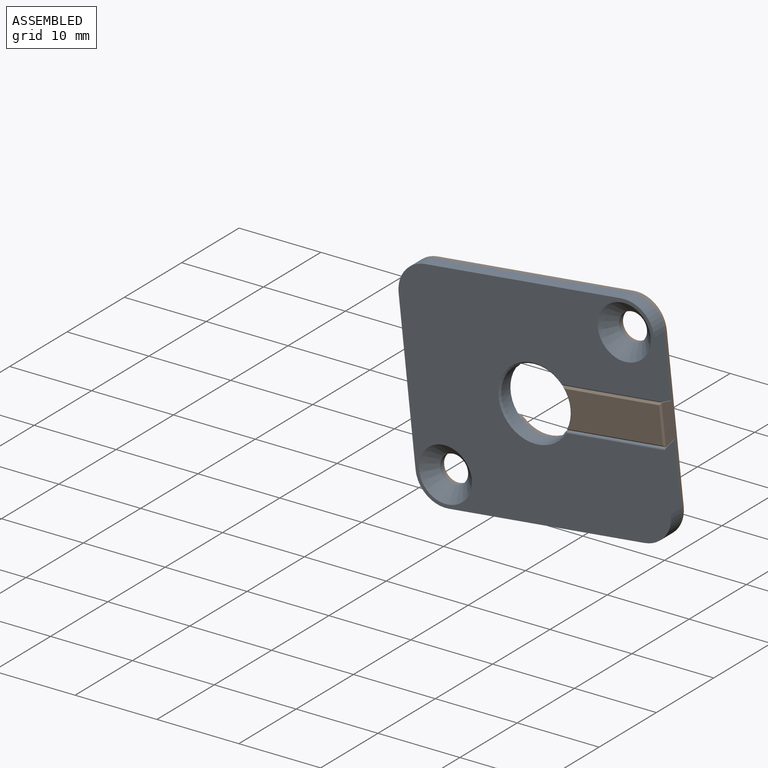
[diagram: assembled view]
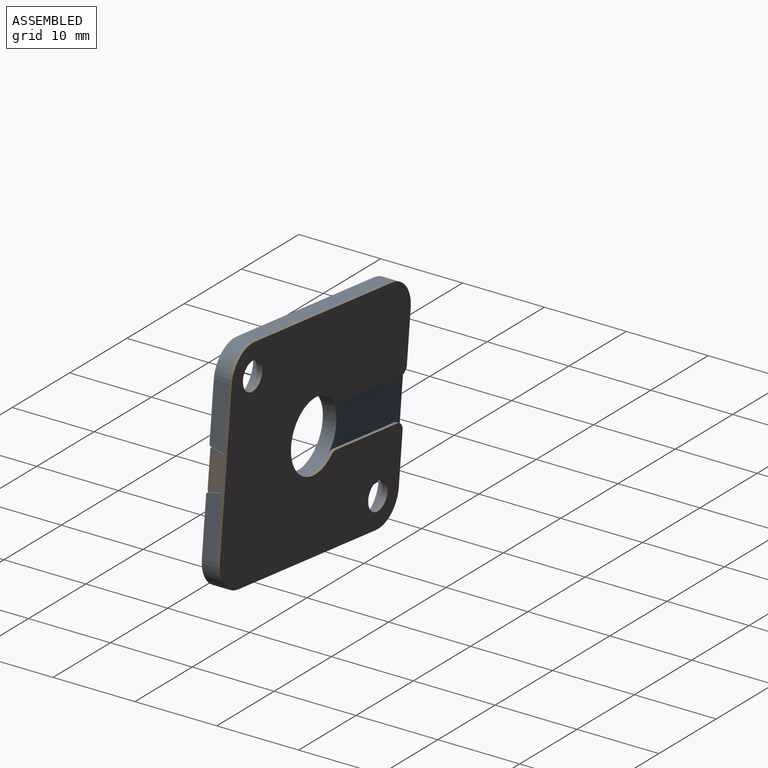
[diagram: assembled view, second angle]
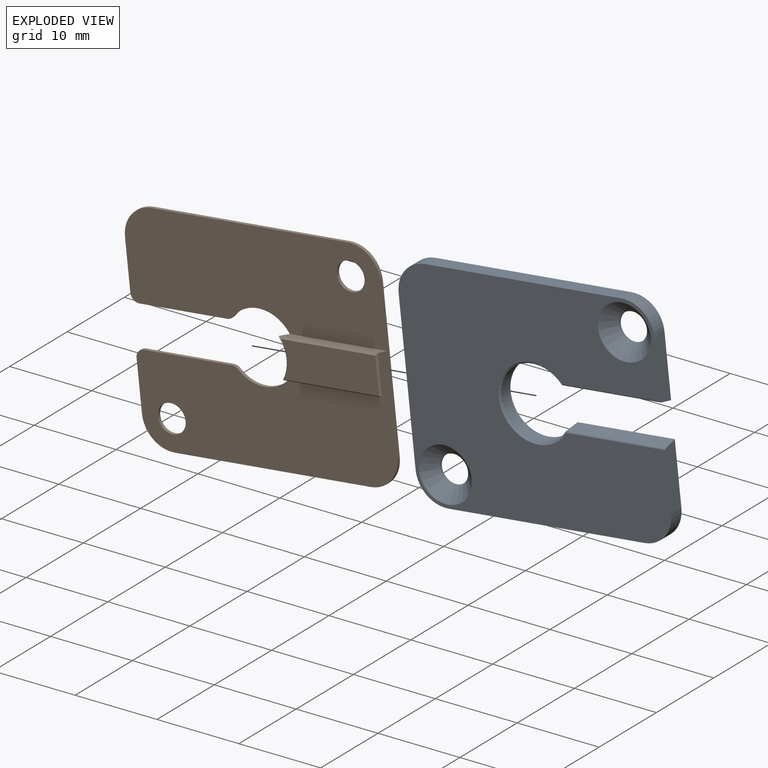
[diagram: exploded view]
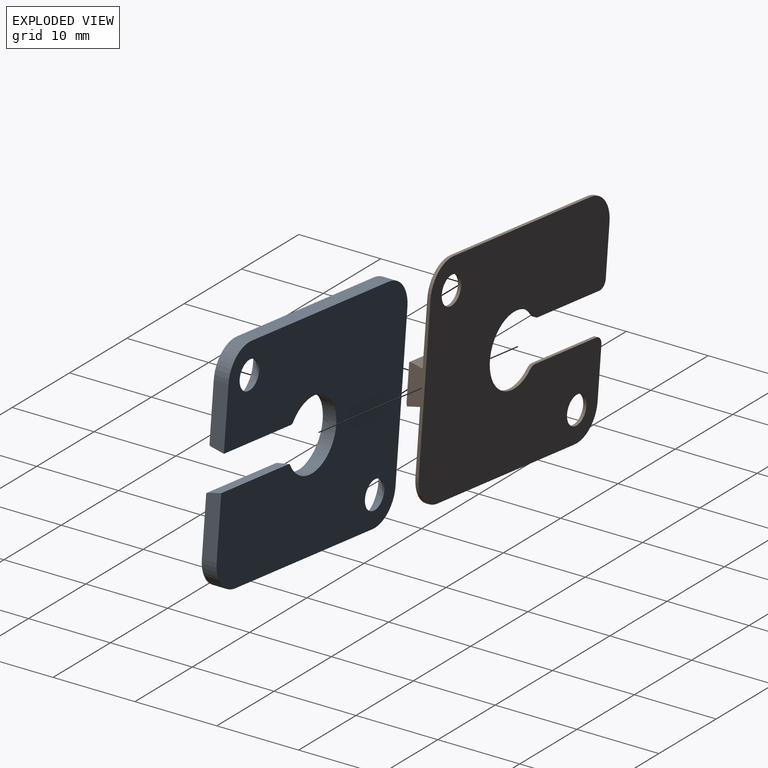
[diagram: exploded view, second angle]
ASSEMBLY  parts=2 mates=2
PART A: 25 faces, bbox 31.4x2x26.4 mm
  f0: plane 7.44x1.8mm, normal (-1,0,0), area 13mm2, adj f2,f3,f9,f17,f18
  f1: plane 7.44x1.8mm, normal (-1,0,0), area 13mm2, adj f2,f3,f12,f16,f19
  f2: plane 31.4x26.4mm, normal (0,-1,0), area 693.7mm2, adj f0,f1,f4,f5,f6,f7,f8,f9
  f3: plane 31.4x26.4mm, normal (0,1,0), area 627.9mm2, adj f0,f1,f4,f5,f8,f9,f10,f11
  f4: plane 24.08x1.8mm, normal (0,0,-1), area 43.3mm2, adj f2,f3,f9,f10
  f5: plane 19.08x1.8mm, normal (1,0,0), area 34.3mm2, adj f2,f3,f10,f11
  f6: cylinder r=1.7mm len=3.4mm, axis (0,1,0), area 2.8mm2, adj f2,f13
  f7: cylinder r=1.7mm len=3.4mm, axis (0,1,0), area 2.8mm2, adj f2,f14
  f8: plane 24.08x1.8mm, normal (0,0,1), area 43.3mm2, adj f2,f3,f11,f12
  f9: cylinder r=3.66mm len=3.66mm, axis (0,1,0), area 10.3mm2, adj f0,f2,f3,f4
  f10: cylinder r=3.66mm len=3.66mm, axis (0,-1,0), area 10.3mm2, adj f2,f3,f4,f5
  f11: cylinder r=3.66mm len=3.66mm, axis (0,1,0), area 10.3mm2, adj f2,f3,f5,f8
  f12: cylinder r=3.66mm len=3.66mm, axis (0,-1,0), area 10.3mm2, adj f1,f2,f3,f8
  f13: cone r=3.24mm half-angle=45deg, axis (0,1,0), area 33.8mm2, adj f3,f6
  f14: cone r=3.24mm half-angle=45deg, axis (0,1,0), area 33.8mm2, adj f3,f7
  f15: cylinder r=4.25mm len=8.5mm, axis (0,1,0), area 34.7mm2, adj f2,f20,f22,f24
  f16: plane 12.16x1.67mm, normal (0,0.22,-0.98), area 20.2mm2, adj f1,f2,f19,f20
  f17: plane 12.16x1.67mm, normal (0,0.22,0.98), area 20.2mm2, adj f0,f2,f18,f24
  f18: cylinder r=0.2mm len=12.13mm, axis (-1,0,0), area 3.3mm2, adj f0,f3,f17,f23
  f19: cylinder r=0.2mm len=12.13mm, axis (-1,0,0), area 3.3mm2, adj f1,f3,f16,f21
  f20: bspline ~1.77x0.46mm, area 0.3mm2, adj f2,f15,f16,f21
  f21: bspline ~0.2x0.2mm, area 0mm2, adj f19,f20,f22
  f22: cone r=4.45mm half-angle=45deg, axis (0,1,0), area 6.2mm2, adj f3,f15,f21,f23
  f23: bspline ~0.2x0.2mm, area 0mm2, adj f18,f22,f24
  f24: bspline ~1.77x0.46mm, area 0.3mm2, adj f2,f15,f17,f23
PART B: 28 faces, bbox 31.4x2.2x26.4 mm
  f0: plane 31.4x11.16mm, normal (0,-1,0), area 318.1mm2, adj f2,f5,f8,f9,f10,f13,f15,f16
  f1: plane 6.04x0.4mm, normal (-1,0,0), area 2.4mm2, adj f3,f4,f11,f17
  f2: plane 6.04x0.4mm, normal (-1,0,0), area 2.4mm2, adj f0,f4,f10,f18
  f3: plane 31.4x11.16mm, normal (0,-1,0), area 318.1mm2, adj f1,f6,f7,f9,f11,f12,f14,f16
  f4: plane 31.4x26.4mm, normal (0,1,0), area 683.5mm2, adj f1,f2,f5,f6,f7,f8,f9,f10
  f5: plane 24.08x0.4mm, normal (0,0,1), area 9.6mm2, adj f0,f4,f10,f13
  f6: plane 24.08x0.4mm, normal (0,0,-1), area 9.6mm2, adj f3,f4,f11,f12
  f7: cylinder r=1.7mm len=3.4mm, axis (0,1,0), area 4.3mm2, adj f3,f4
  f8: cylinder r=1.7mm len=3.4mm, axis (0,1,0), area 4.3mm2, adj f0,f4
  f9: plane 19.08x2mm, normal (1,0,0), area 14.7mm2, adj f0,f3,f4,f12,f13,f22,f23,f24
  f10: cylinder r=3.66mm len=3.66mm, axis (0,-1,0), area 2.3mm2, adj f0,f2,f4,f5
  f11: cylinder r=3.66mm len=3.66mm, axis (0,1,0), area 2.3mm2, adj f1,f3,f4,f6
  f12: cylinder r=3.66mm len=3.66mm, axis (0,-1,0), area 2.3mm2, adj f3,f4,f6,f9
  f13: cylinder r=3.66mm len=3.66mm, axis (0,1,0), area 2.3mm2, adj f0,f4,f5,f9
  f14: plane 10.79x0.4mm, normal (0,0,1), area 4.3mm2, adj f3,f4,f17,f19
  f15: plane 10.79x0.4mm, normal (0,0,-1), area 4.3mm2, adj f0,f4,f18,f20
  f16: cylinder r=4.25mm len=8.5mm, axis (0,1,0), area 15.7mm2, adj f0,f3,f4,f19,f20,f22,f23,f24
  f17: cylinder r=1mm len=1mm, axis (0,1,0), area 0.6mm2, adj f1,f3,f4,f14
  f18: cylinder r=1mm len=1mm, axis (0,-1,0), area 0.6mm2, adj f0,f2,f4,f15
  f19: cylinder r=1mm len=0.75mm, axis (0,1,0), area 0.3mm2, adj f3,f4,f14,f16
  f20: cylinder r=1mm len=0.75mm, axis (0,1,0), area 0.3mm2, adj f0,f4,f15,f16
  f21: plane 11.63x4.38mm, normal (0,-1,0), area 49.2mm2, adj f24,f25,f26,f27
  f22: plane 12.18x1.56mm, normal (0,0.22,-0.98), area 19.3mm2, adj f3,f9,f16,f27
  f23: plane 12.18x1.56mm, normal (0,0.22,0.98), area 19.3mm2, adj f0,f9,f16,f24
  f24: plane 12.19x0.25mm, normal (0,-0.63,0.78), area 3.7mm2, adj f9,f16,f21,f23,f25,f26
  f25: plane 4.7x0.2mm, normal (0.71,-0.71,0), area 1.3mm2, adj f9,f21,f24,f27
  f26: cone r=4.25mm half-angle=45deg, axis (0,-1,0), area 1.4mm2, adj f16,f21,f24,f27
  f27: plane 12.19x0.25mm, normal (0,-0.63,-0.78), area 3.7mm2, adj f9,f16,f21,f22,f25,f26
PLACE A rot(axis=(0.05,0,-1),180deg) t=(-18.68,19.76,28.1)mm
PLACE B rot(axis=(0,-1,0),6.2deg) t=(-18.68,21.96,28.1)mm
MATE planar A.f1 <-> B.f9  axis (0.99,0,0.11) through (-3.71,20.67,35.69)mm
MATE planar A.f2 <-> B.f3  axis (0,1,0) through (-19.37,21.56,28.02)mm
